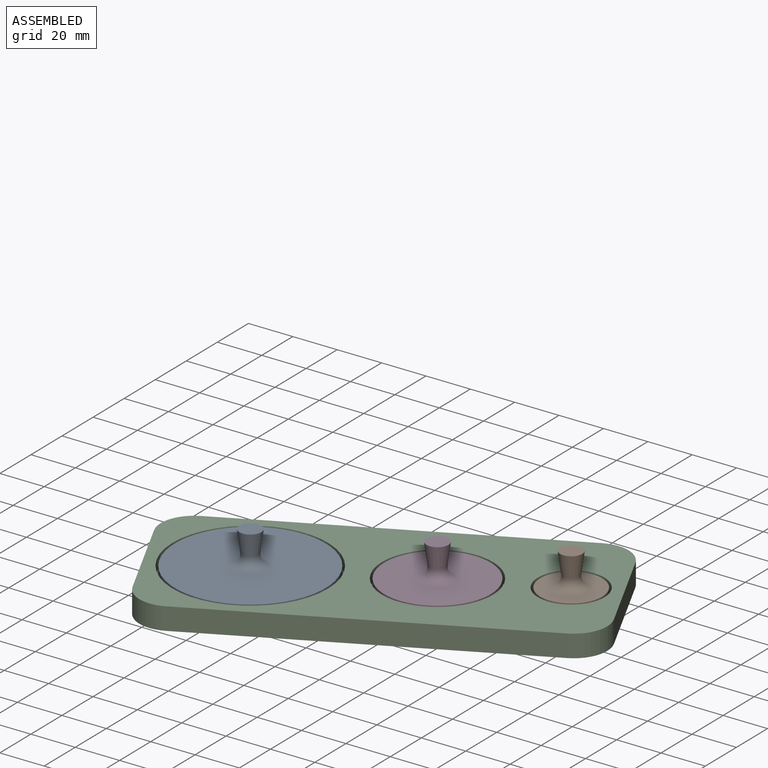
[diagram: assembled view]
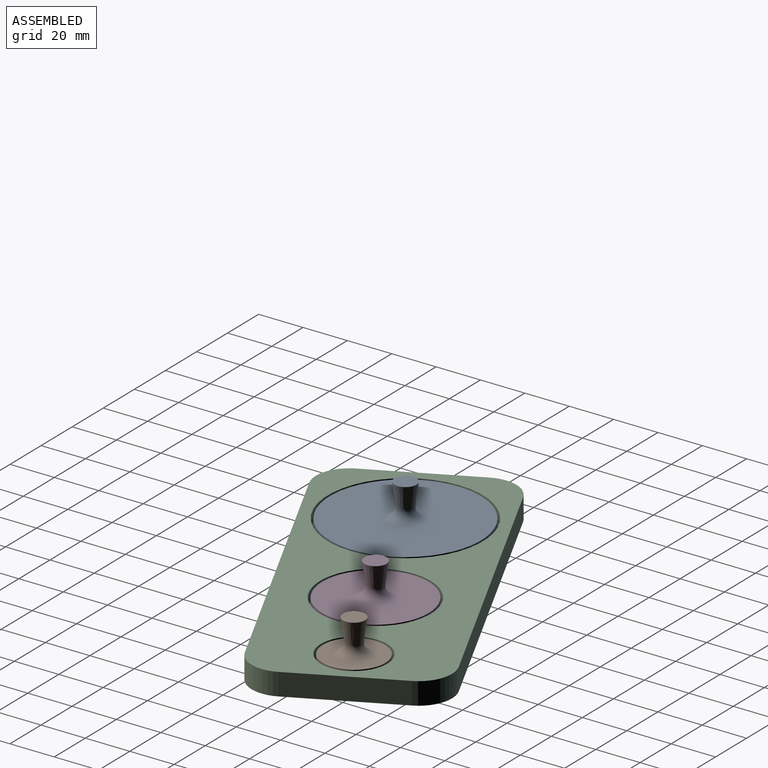
[diagram: assembled view, second angle]
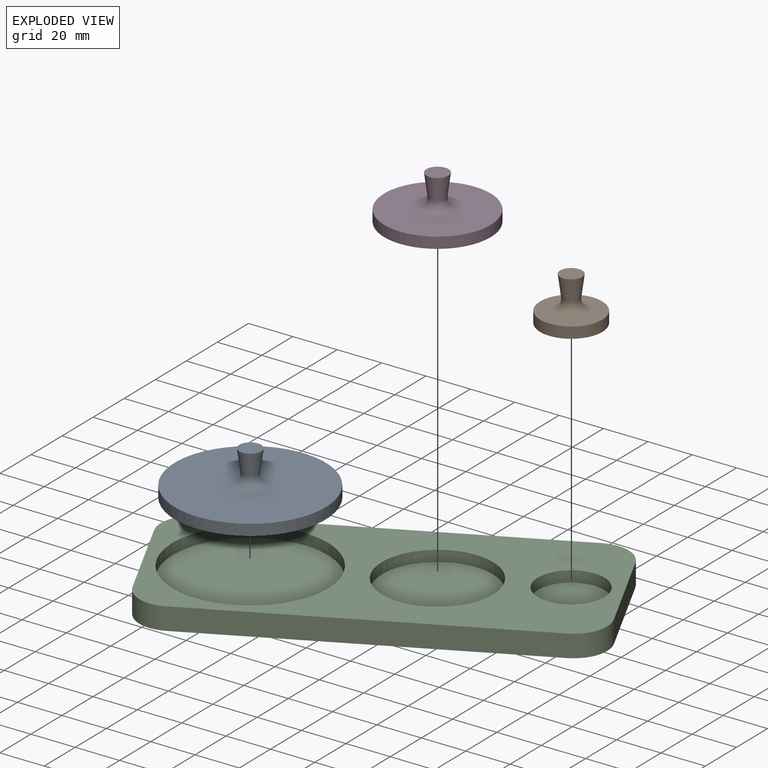
[diagram: exploded view]
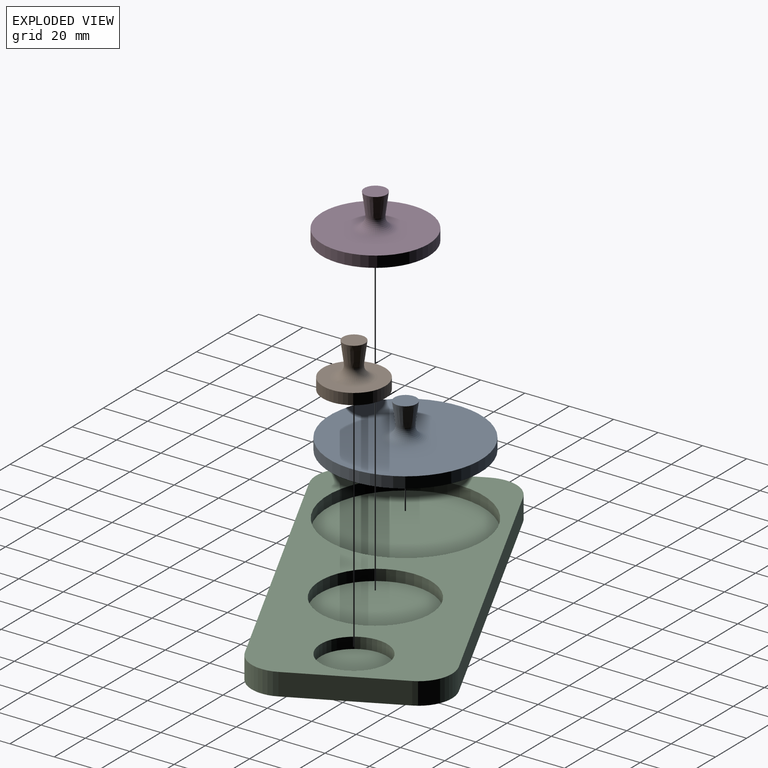
[diagram: exploded view, second angle]
ASSEMBLY  parts=4 mates=3
PART A: 6 faces, bbox 68x68x20 mm
  f0: cylinder r=34mm len=68mm, axis (0,0,-1), area 1068.1mm2, adj f1,f2
  f1: plane 68x68mm, normal (0,0,1), area 3393.3mm2, adj f0,f5
  f2: plane 68x68mm, normal (0,0,-1), area 3631.7mm2, adj f0
  f3: cone r=5mm half-angle=7.6deg, axis (0,0,1), area 259.1mm2, adj f4,f5
  f4: plane 10x10mm, normal (0,0,1), area 78.5mm2, adj f3
  f5: torus R=8.71mm, axis (0,0,1), area 288.3mm2, adj f1,f3
PART B: 6 faces, bbox 28x28x20 mm
  f0: cylinder r=14mm len=28mm, axis (0,0,-1), area 439.8mm2, adj f1,f2
  f1: plane 28x28mm, normal (0,0,1), area 377.4mm2, adj f0,f5
  f2: plane 28x28mm, normal (0,0,-1), area 615.8mm2, adj f0
  f3: cone r=5mm half-angle=7.6deg, axis (0,0,1), area 259.1mm2, adj f4,f5
  f4: plane 10x10mm, normal (0,0,1), area 78.5mm2, adj f3
  f5: torus R=8.71mm, axis (0,0,1), area 288.3mm2, adj f1,f3
PART C: 16 faces, bbox 180x80x10 mm
  f0: plane 50x10mm, normal (-1,0,0), area 500mm2, adj f4,f5,f6,f9
  f1: plane 150x10mm, normal (0,-1,0), area 1500mm2, adj f4,f5,f6,f7
  f2: plane 50x10mm, normal (1,0,0), area 500mm2, adj f4,f5,f7,f8
  f3: plane 150x10mm, normal (0,1,0), area 1500mm2, adj f4,f5,f8,f9
  f4: plane 180x80mm, normal (0,0,1), area 7688.1mm2, adj f0,f1,f2,f3,f6,f7,f8,f9
  f5: plane 180x80mm, normal (0,0,-1), area 14206.9mm2, adj f0,f1,f2,f3,f6,f7,f8,f9
  f6: cylinder r=15mm len=15mm, axis (0,0,-1), area 235.6mm2, adj f0,f1,f4,f5
  f7: cylinder r=15mm len=15mm, axis (0,0,1), area 235.6mm2, adj f1,f2,f4,f5
  f8: cylinder r=15mm len=15mm, axis (0,0,-1), area 235.6mm2, adj f2,f3,f4,f5
  f9: cylinder r=15mm len=15mm, axis (0,0,1), area 235.6mm2, adj f0,f3,f4,f5
  f10: cylinder r=15mm len=30mm, axis (0,0,1), area 471.2mm2, adj f4,f11
  f11: plane 30x30mm, normal (0,0,1), area 706.9mm2, adj f10
  f12: cylinder r=25mm len=50mm, axis (0,0,1), area 785.4mm2, adj f4,f13
  f13: plane 50x50mm, normal (0,0,1), area 1963.5mm2, adj f12
  f14: cylinder r=35mm len=70mm, axis (0,0,1), area 1099.6mm2, adj f4,f15
  f15: plane 70x70mm, normal (0,0,1), area 3848.5mm2, adj f14
PART D: 6 faces, bbox 48x48x20 mm
  f0: cylinder r=24mm len=48mm, axis (0,0,-1), area 754mm2, adj f1,f2
  f1: plane 48x48mm, normal (0,0,1), area 1571.2mm2, adj f0,f5
  f2: plane 48x48mm, normal (0,0,-1), area 1809.6mm2, adj f0
  f3: cone r=5mm half-angle=7.6deg, axis (0,0,1), area 259.1mm2, adj f4,f5
  f4: plane 10x10mm, normal (0,0,1), area 78.5mm2, adj f3
  f5: torus R=8.71mm, axis (0,0,1), area 288.3mm2, adj f1,f3
PLACE A rot(axis=(0,0,-1),122.7deg) t=(-61.39,-56.73,-16.94)mm
PLACE B rot(axis=(0,0,1),25.9deg) t=(46.56,-4.34,-16.94)mm
PLACE C rot(axis=(0,0,1),25.9deg) t=(-16.41,-34.9,-16.94)mm
PLACE D rot(axis=(0,0,-1),1deg) t=(1.58,-26.17,-16.94)mm
MATE revolute D.f0 <-> C.f12  axis (0,0,-1) through (1.58,-26.17,-14.44)mm
MATE revolute B.f0 <-> C.f10  axis (0,0,-1) through (46.56,-4.34,-16.94)mm
MATE revolute A.f0 <-> C.f14  axis (0,0,-1) through (-61.39,-56.73,-14.44)mm
